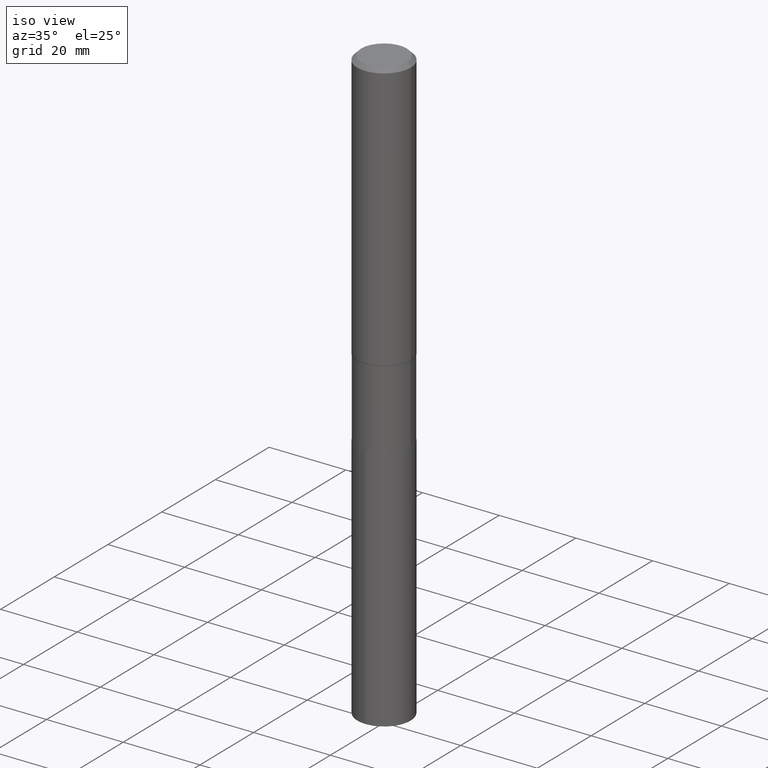
[diagram: clean part render]
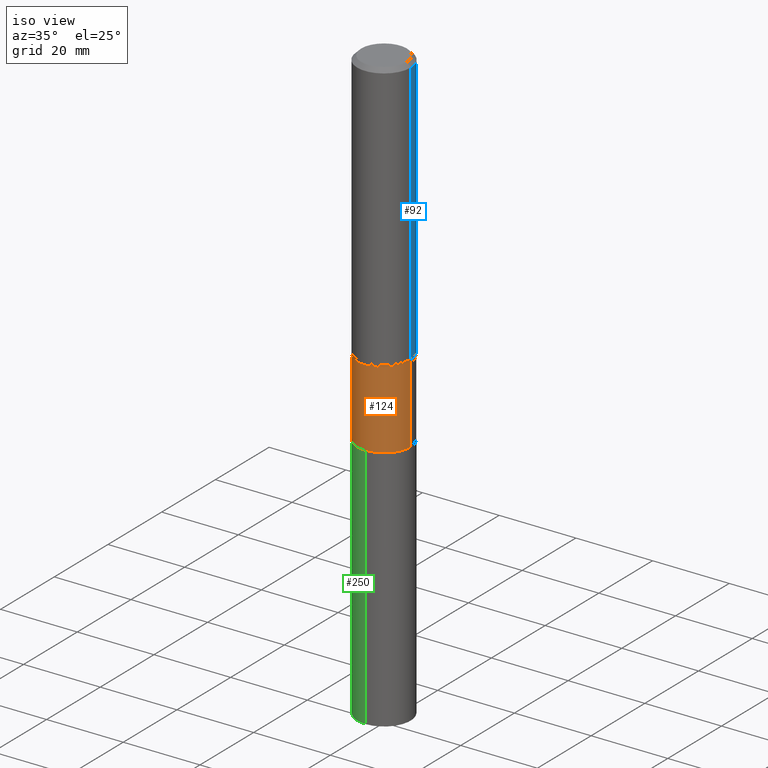
[diagram: same view with three faces highlighted in distinct colors, each labeled with its STEP entity id]
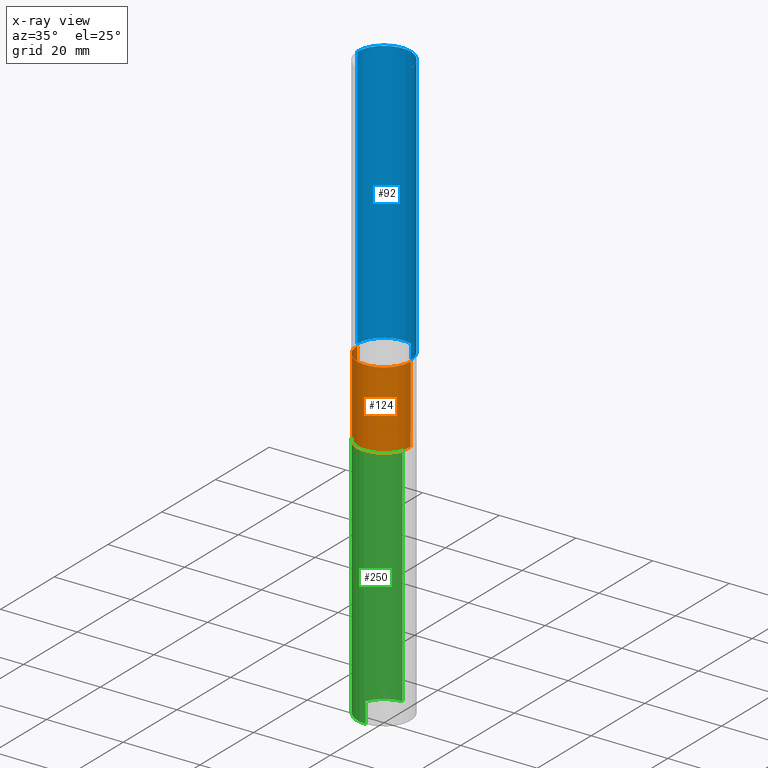
[diagram: x-ray of the same camera — body ghosted, the three highlighted faces saturated]
A machine part, iso view with three faces highlighted in distinct colors.
The next image is the same camera in x-ray (body ghosted, the three faces saturated) — at least one of them is partly hidden behind the body in this view.
Their STEP definitions:

[orange] entity #124 — the highlighted cylindrical surface (edge-blend (fillet) strip) has radius 6.9456 mm, axis along (-0, 0, 1).
#22 = CYLINDRICAL_SURFACE ( 'NONE', #177, 0.2734499999999999709 ) ;
#30 = DIRECTION ( 'NONE',  ( -2.445468806185136877E-29, 3.491481338843145188E-15, 1.000000000000000000 ) ) ;
#40 = VECTOR ( 'NONE', #123, 39.37007874015748143 ) ;
#75 = VERTEX_POINT ( 'NONE', #246 ) ;
#85 = DIRECTION ( 'NONE',  ( 1.000000000000000000, -6.982962677686267499E-15, 0.000000000000000000 ) ) ;
#95 = LINE ( 'NONE', #355, #411 ) ;
#109 = EDGE_CURVE ( 'NONE', #467, #276, #381, .T. ) ;
#123 = DIRECTION ( 'NONE',  ( -2.445468806185136877E-29, 3.491481338843145188E-15, 1.000000000000000000 ) ) ;
#124 = ADVANCED_FACE ( 'NONE', ( #354 ), #22, .T. ) ;
#131 = EDGE_CURVE ( 'NONE', #310, #467, #425, .T. ) ;
#132 = DIRECTION ( 'NONE',  ( 1.000000000000000000, -6.982962677686264344E-15, 0.000000000000000000 ) ) ;
#138 = ORIENTED_EDGE ( 'NONE', *, *, #131, .T. ) ;
#140 = EDGE_LOOP ( 'NONE', ( #304, #138, #324, #219 ) ) ;
#162 = CARTESIAN_POINT ( 'NONE',  ( 8.712960809557023143E-29, -1.243979886216424317E-14, -3.562899999999999956 ) ) ;
#175 = EDGE_CURVE ( 'NONE', #75, #276, #280, .T. ) ;
#177 = AXIS2_PLACEMENT_3D ( 'NONE', #456, #287, #419 ) ;
#216 = CARTESIAN_POINT ( 'NONE',  ( 6.774926780655301628E-29, -9.672799901131050360E-15, -2.770399999999999974 ) ) ;
#219 = ORIENTED_EDGE ( 'NONE', *, *, #175, .F. ) ;
#220 = CARTESIAN_POINT ( 'NONE',  ( -0.2734500000000000819, -9.113320270711650646E-15, -3.562899999999999956 ) ) ;
#246 = CARTESIAN_POINT ( 'NONE',  ( -0.2734499999999999154, -9.113320270711650646E-15, -2.770399999999999974 ) ) ;
#265 = AXIS2_PLACEMENT_3D ( 'NONE', #216, #292, #85 ) ;
#276 = VERTEX_POINT ( 'NONE', #296 ) ;
#280 = CIRCLE ( 'NONE', #265, 0.2734499999999999154 ) ;
#287 = DIRECTION ( 'NONE',  ( -2.445468806185136597E-29, 3.491481338843145583E-15, 1.000000000000000000 ) ) ;
#292 = DIRECTION ( 'NONE',  ( -2.445468806185136597E-29, 3.491481338843145583E-15, 1.000000000000000000 ) ) ;
#296 = CARTESIAN_POINT ( 'NONE',  ( 0.2734499999999999154, -1.158229104534435959E-14, -2.770399999999999974 ) ) ;
#304 = ORIENTED_EDGE ( 'NONE', *, *, #394, .F. ) ;
#310 = VERTEX_POINT ( 'NONE', #220 ) ;
#321 = DIRECTION ( 'NONE',  ( -2.445468806185136597E-29, 3.491481338843145583E-15, 1.000000000000000000 ) ) ;
#324 = ORIENTED_EDGE ( 'NONE', *, *, #109, .T. ) ;
#354 = FACE_OUTER_BOUND ( 'NONE', #140, .T. ) ;
#355 = CARTESIAN_POINT ( 'NONE',  ( -0.2734499999999999709, 1.942979110935993751E-15, -1.345082800430203888E-29 ) ) ;
#381 = LINE ( 'NONE', #460, #40 ) ;
#394 = EDGE_CURVE ( 'NONE', #310, #75, #95, .T. ) ;
#396 = AXIS2_PLACEMENT_3D ( 'NONE', #162, #321, #132 ) ;
#408 = CARTESIAN_POINT ( 'NONE',  ( 0.2734500000000000264, -1.434929000637755398E-14, -3.562899999999999956 ) ) ;
#411 = VECTOR ( 'NONE', #30, 39.37007874015748143 ) ;
#419 = DIRECTION ( 'NONE',  ( 1.000000000000000000, -6.982962677686267499E-15, 4.876176775795935793E-29 ) ) ;
#425 = CIRCLE ( 'NONE', #396, 0.2734500000000000264 ) ;
#456 = CARTESIAN_POINT ( 'NONE',  ( 0.000000000000000000, 0.000000000000000000, 0.000000000000000000 ) ) ;
#460 = CARTESIAN_POINT ( 'NONE',  ( 0.2734499999999999709, -1.909491144213309629E-15, 1.333390539341398475E-29 ) ) ;
#467 = VERTEX_POINT ( 'NONE', #408 ) ;

[blue] entity #92 — the highlighted cylindrical surface (edge-blend (fillet) strip) has radius 7.0002 mm, axis along (-0, 0, 1).
#8 = EDGE_CURVE ( 'NONE', #107, #31, #197, .T. ) ;
#15 = CARTESIAN_POINT ( 'NONE',  ( 0.2756000000000001782, -1.924504513970336532E-15, 1.343874319409360828E-29 ) ) ;
#20 = DIRECTION ( 'NONE',  ( -2.445468806185136597E-29, 3.491481338843145583E-15, 1.000000000000000000 ) ) ;
#31 = VERTEX_POINT ( 'NONE', #451 ) ;
#48 = AXIS2_PLACEMENT_3D ( 'NONE', #249, #87, #210 ) ;
#51 = EDGE_CURVE ( 'NONE', #31, #152, #127, .T. ) ;
#57 = CARTESIAN_POINT ( 'NONE',  ( 0.2756000000000003447, -1.153298364311193009E-14, -2.751977798720021351 ) ) ;
#60 = CYLINDRICAL_SURFACE ( 'NONE', #389, 0.2756000000000001782 ) ;
#79 = ORIENTED_EDGE ( 'NONE', *, *, #273, .T. ) ;
#80 = ORIENTED_EDGE ( 'NONE', *, *, #51, .F. ) ;
#87 = DIRECTION ( 'NONE',  ( -2.445468806185136597E-29, 3.491481338843145583E-15, 1.000000000000000000 ) ) ;
#92 = ADVANCED_FACE ( 'NONE', ( #453 ), #60, .T. ) ;
#93 = DIRECTION ( 'NONE',  ( -2.445468806185136597E-29, 3.491481338843145583E-15, 1.000000000000000000 ) ) ;
#96 = AXIS2_PLACEMENT_3D ( 'NONE', #245, #20, #362 ) ;
#107 = VERTEX_POINT ( 'NONE', #57 ) ;
#127 = CIRCLE ( 'NONE', #48, 0.2756000000000000116 ) ;
#152 = VERTEX_POINT ( 'NONE', #346 ) ;
#169 = VECTOR ( 'NONE', #339, 39.37007874015748143 ) ;
#176 = EDGE_CURVE ( 'NONE', #107, #232, #206, .T. ) ;
#184 = ORIENTED_EDGE ( 'NONE', *, *, #8, .F. ) ;
#194 = ORIENTED_EDGE ( 'NONE', *, *, #176, .T. ) ;
#197 = LINE ( 'NONE', #15, #169 ) ;
#206 = CIRCLE ( 'NONE', #96, 0.2756000000000003447 ) ;
#210 = DIRECTION ( 'NONE',  ( 1.000000000000000000, -6.982962677686267499E-15, 0.000000000000000000 ) ) ;
#218 = DIRECTION ( 'NONE',  ( -2.445468806185136877E-29, 3.491481338843145188E-15, 1.000000000000000000 ) ) ;
#232 = VERTEX_POINT ( 'NONE', #326 ) ;
#245 = CARTESIAN_POINT ( 'NONE',  ( 6.729875862083849729E-29, -9.608479129141591981E-15, -2.751977798720021351 ) ) ;
#249 = CARTESIAN_POINT ( 'NONE',  ( 1.010956804476942048E-30, -1.443378385477765563E-16, -0.04134000000000026542 ) ) ;
#264 = LINE ( 'NONE', #462, #383 ) ;
#273 = EDGE_CURVE ( 'NONE', #232, #152, #264, .T. ) ;
#284 = DIRECTION ( 'NONE',  ( 1.000000000000000000, -6.982962677686267499E-15, 4.876176775795935793E-29 ) ) ;
#289 = CARTESIAN_POINT ( 'NONE',  ( 0.000000000000000000, 0.000000000000000000, 0.000000000000000000 ) ) ;
#326 = CARTESIAN_POINT ( 'NONE',  ( -0.2756000000000003447, -7.650223349386753813E-15, -2.751977798720021351 ) ) ;
#339 = DIRECTION ( 'NONE',  ( -2.445468806185136877E-29, 3.491481338843145188E-15, 1.000000000000000000 ) ) ;
#346 = CARTESIAN_POINT ( 'NONE',  ( -0.2756000000000000116, -2.918152704089846015E-15, -0.04134000000000026542 ) ) ;
#362 = DIRECTION ( 'NONE',  ( 1.000000000000000000, -6.982962677686264344E-15, 0.000000000000000000 ) ) ;
#383 = VECTOR ( 'NONE', #218, 39.37007874015748143 ) ;
#389 = AXIS2_PLACEMENT_3D ( 'NONE', #289, #93, #284 ) ;
#442 = EDGE_LOOP ( 'NONE', ( #194, #79, #80, #184 ) ) ;
#451 = CARTESIAN_POINT ( 'NONE',  ( 0.2756000000000000116, -2.068842352518111732E-15, -0.04134000000000026542 ) ) ;
#453 = FACE_OUTER_BOUND ( 'NONE', #442, .T. ) ;
#462 = CARTESIAN_POINT ( 'NONE',  ( -0.2756000000000001782, 1.958255779754837378E-15, -1.355658510874252848E-29 ) ) ;

[green] entity #250 — the highlighted cylindrical surface (edge-blend (fillet) strip) has radius 6.9456 mm, axis along (-0, 0, 1).
#5 = DIRECTION ( 'NONE',  ( -2.445078219404103595E-29, 3.492040681344403691E-15, 1.000000000000000000 ) ) ;
#25 = CARTESIAN_POINT ( 'NONE',  ( -1.909491144213222460E-15, -0.2734500000000124609, -3.563399999999998791 ) ) ;
#38 = DIRECTION ( 'NONE',  ( -2.445078219404103595E-29, 3.492040681344403296E-15, 1.000000000000000000 ) ) ;
#39 = VERTEX_POINT ( 'NONE', #312 ) ;
#68 = CARTESIAN_POINT ( 'NONE',  ( 1.942979110936112080E-15, 0.2734499999999787101, -6.102400000000002045 ) ) ;
#81 = ORIENTED_EDGE ( 'NONE', *, *, #423, .F. ) ;
#113 = VECTOR ( 'NONE', #38, 39.37007874015748143 ) ;
#134 = DIRECTION ( 'NONE',  ( -6.982962677686265922E-15, -1.000000000000000000, 3.996120670929621909E-15 ) ) ;
#136 = CARTESIAN_POINT ( 'NONE',  ( 1.942979110936080920E-15, 0.2734499999999875919, -3.563400000000001011 ) ) ;
#143 = CIRCLE ( 'NONE', #426, 0.2734500000000000264 ) ;
#153 = EDGE_CURVE ( 'NONE', #333, #39, #166, .T. ) ;
#160 = AXIS2_PLACEMENT_3D ( 'NONE', #173, #5, #134 ) ;
#166 = LINE ( 'NONE', #25, #420 ) ;
#171 = DIRECTION ( 'NONE',  ( -2.445078219404103595E-29, 3.492040681344403296E-15, 1.000000000000000000 ) ) ;
#173 = CARTESIAN_POINT ( 'NONE',  ( 1.492223714302713929E-28, -2.130783589276710899E-14, -6.102400000000001157 ) ) ;
#185 = EDGE_CURVE ( 'NONE', #260, #333, #189, .T. ) ;
#189 = CIRCLE ( 'NONE', #160, 0.2734500000000000264 ) ;
#195 = DIRECTION ( 'NONE',  ( -6.982962677686265922E-15, -1.000000000000000000, 3.996120670929621909E-15 ) ) ;
#200 = ORIENTED_EDGE ( 'NONE', *, *, #185, .T. ) ;
#217 = LINE ( 'NONE', #136, #113 ) ;
#239 = AXIS2_PLACEMENT_3D ( 'NONE', #435, #357, #395 ) ;
#242 = CARTESIAN_POINT ( 'NONE',  ( 8.714183543960115944E-29, -1.244154460283366546E-14, -3.563400000000000123 ) ) ;
#250 = ADVANCED_FACE ( 'NONE', ( #392 ), #267, .T. ) ;
#260 = VERTEX_POINT ( 'NONE', #68 ) ;
#261 = CARTESIAN_POINT ( 'NONE',  ( 1.942979110936143635E-15, 0.2734499999999875919, -3.563400000000001011 ) ) ;
#267 = CYLINDRICAL_SURFACE ( 'NONE', #239, 0.2734500000000000264 ) ;
#269 = EDGE_CURVE ( 'NONE', #260, #338, #217, .T. ) ;
#312 = CARTESIAN_POINT ( 'NONE',  ( -1.909491144213222460E-15, -0.2734500000000124609, -3.563399999999998791 ) ) ;
#330 = CARTESIAN_POINT ( 'NONE',  ( -1.909491144213160534E-15, -0.2734500000000213427, -6.102400000000000269 ) ) ;
#333 = VERTEX_POINT ( 'NONE', #330 ) ;
#338 = VERTEX_POINT ( 'NONE', #261 ) ;
#344 = EDGE_LOOP ( 'NONE', ( #463, #200, #412, #81 ) ) ;
#357 = DIRECTION ( 'NONE',  ( -2.445078219404103595E-29, 3.492040681344403691E-15, 1.000000000000000000 ) ) ;
#392 = FACE_OUTER_BOUND ( 'NONE', #344, .T. ) ;
#395 = DIRECTION ( 'NONE',  ( -6.982962677686265922E-15, -1.000000000000000000, 3.996120670929621909E-15 ) ) ;
#410 = DIRECTION ( 'NONE',  ( -2.445078219404103595E-29, 3.492040681344403691E-15, 1.000000000000000000 ) ) ;
#412 = ORIENTED_EDGE ( 'NONE', *, *, #153, .T. ) ;
#420 = VECTOR ( 'NONE', #171, 39.37007874015748143 ) ;
#423 = EDGE_CURVE ( 'NONE', #338, #39, #143, .T. ) ;
#426 = AXIS2_PLACEMENT_3D ( 'NONE', #242, #410, #195 ) ;
#435 = CARTESIAN_POINT ( 'NONE',  ( 8.714183543960115944E-29, -1.244154460283366546E-14, -3.563400000000000123 ) ) ;
#463 = ORIENTED_EDGE ( 'NONE', *, *, #269, .F. ) ;